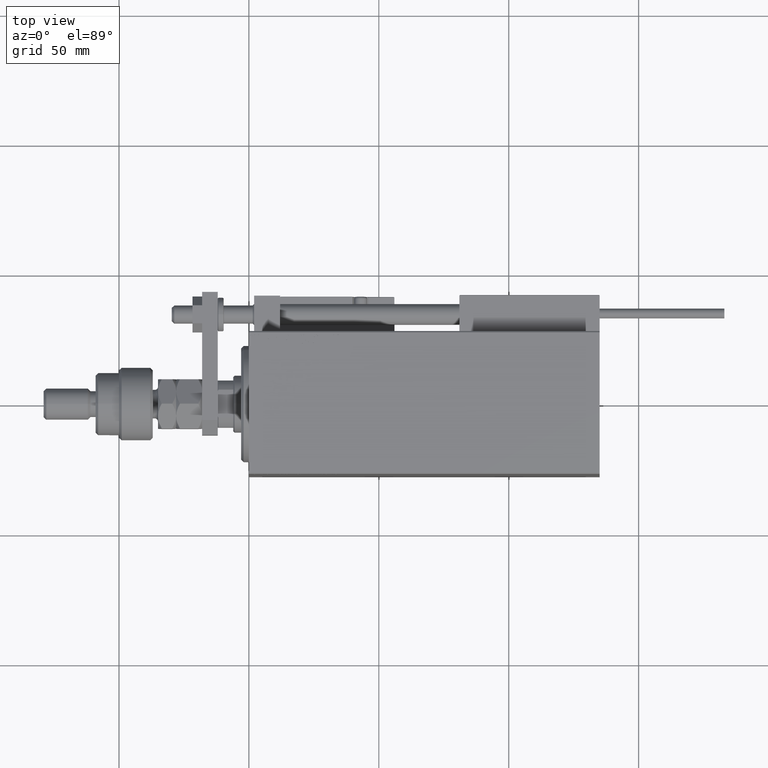
[diagram: clean part render]
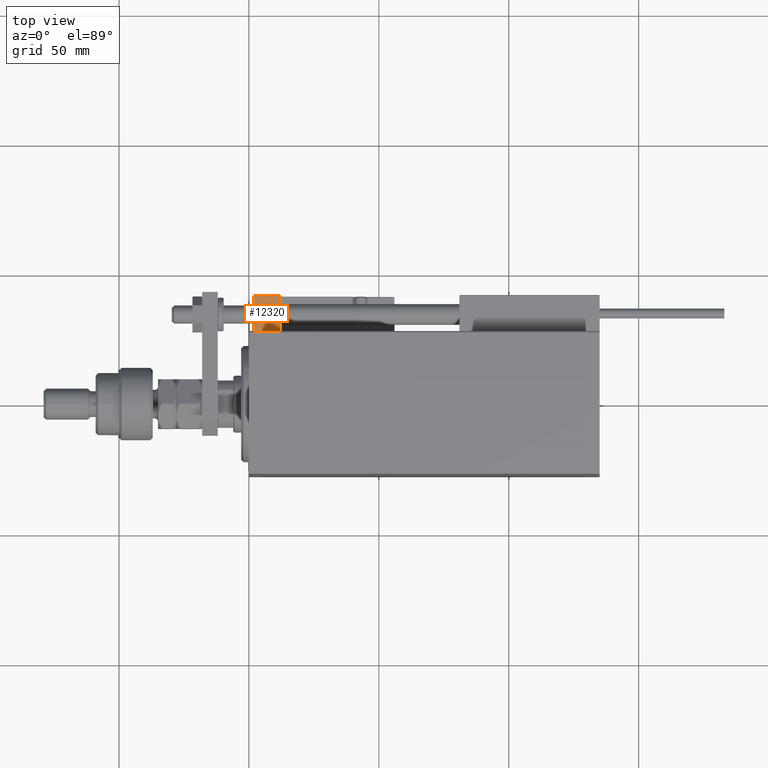
[diagram: same view with one face highlighted and labeled with its STEP entity id]
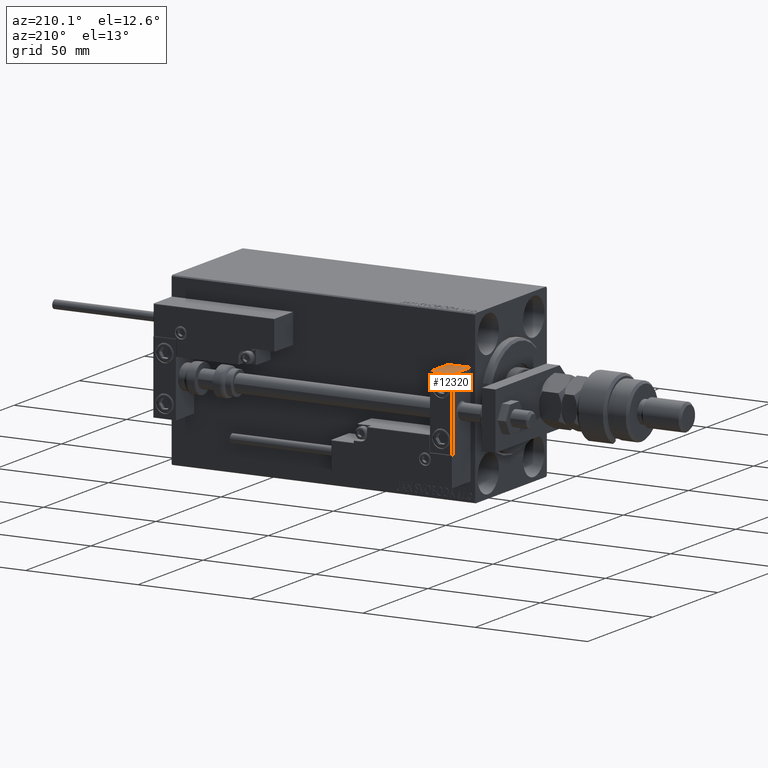
[diagram: same view with one face highlighted and labeled with its STEP entity id]
A machine part, top view. The second image highlights one B-rep face of the part: STEP entity #12320.
A second angle (auxiliary view) of the same face is appended — the face is thin or edge-on in the first view.
In plain terms, the highlighted planar face has unit normal (0, 0, 1).
Its self-contained STEP definition (entity closure, byte-faithful):
#3472 = CARTESIAN_POINT ( 'NONE',  ( 10.00000000000000000, 7.000000000000000000, -16.00000000000000711 ) ) ;
#3737 = DIRECTION ( 'NONE',  ( 0.000000000000000000, 0.000000000000000000, -1.000000000000000000 ) ) ;
#4720 = CARTESIAN_POINT ( 'NONE',  ( 10.00000000000000000, -7.000000000000000000, -16.00000000000000711 ) ) ;
#5248 = FACE_OUTER_BOUND ( 'NONE', #11695, .T. ) ;
#6681 = CARTESIAN_POINT ( 'NONE',  ( 10.00000000000000000, -7.000000000000000000, -16.00000000000000711 ) ) ;
#7991 = CARTESIAN_POINT ( 'NONE',  ( 10.00000000000000000, 7.000000000000000000, -16.00000000000000711 ) ) ;
#11695 = EDGE_LOOP ( 'NONE', ( #49894, #52844, #18844, #33916 ) ) ;
#11929 = VECTOR ( 'NONE', #32487, 1000.000000000000000 ) ;
#12320 = ADVANCED_FACE ( 'NONE', ( #5248 ), #19843, .T. ) ;
#12966 = EDGE_CURVE ( 'NONE', #20006, #34945, #13729, .T. ) ;
#13729 = LINE ( 'NONE', #30104, #16442 ) ;
#14768 = AXIS2_PLACEMENT_3D ( 'NONE', #3472, #3737, #29155 ) ;
#16442 = VECTOR ( 'NONE', #26067, 1000.000000000000000 ) ;
#17990 = VECTOR ( 'NONE', #33472, 1000.000000000000000 ) ;
#18844 = ORIENTED_EDGE ( 'NONE', *, *, #32539, .T. ) ;
#19843 = PLANE ( 'NONE',  #14768 ) ;
#20006 = VERTEX_POINT ( 'NONE', #31364 ) ;
#20336 = EDGE_CURVE ( 'NONE', #45579, #20006, #32879, .T. ) ;
#25320 = CARTESIAN_POINT ( 'NONE',  ( 10.00000000000000000, 7.000000000000000000, -16.00000000000000711 ) ) ;
#26067 = DIRECTION ( 'NONE',  ( 0.000000000000000000, -1.000000000000000000, 0.000000000000000000 ) ) ;
#28593 = VECTOR ( 'NONE', #50063, 1000.000000000000000 ) ;
#28708 = CARTESIAN_POINT ( 'NONE',  ( 10.00000000000000000, 7.000000000000000000, -16.00000000000000711 ) ) ;
#29155 = DIRECTION ( 'NONE',  ( -1.000000000000000000, 0.000000000000000000, -0.000000000000000000 ) ) ;
#30104 = CARTESIAN_POINT ( 'NONE',  ( 0.000000000000000000, 7.000000000000000000, -16.00000000000000711 ) ) ;
#31364 = CARTESIAN_POINT ( 'NONE',  ( 0.000000000000000000, 7.000000000000000000, -16.00000000000000711 ) ) ;
#32487 = DIRECTION ( 'NONE',  ( 0.000000000000000000, -1.000000000000000000, 0.000000000000000000 ) ) ;
#32539 = EDGE_CURVE ( 'NONE', #45579, #34348, #40815, .T. ) ;
#32879 = LINE ( 'NONE', #25320, #28593 ) ;
#33472 = DIRECTION ( 'NONE',  ( -1.000000000000000000, -0.000000000000000000, -0.000000000000000000 ) ) ;
#33916 = ORIENTED_EDGE ( 'NONE', *, *, #37813, .T. ) ;
#34348 = VERTEX_POINT ( 'NONE', #6681 ) ;
#34945 = VERTEX_POINT ( 'NONE', #38263 ) ;
#37813 = EDGE_CURVE ( 'NONE', #34348, #34945, #45576, .T. ) ;
#38263 = CARTESIAN_POINT ( 'NONE',  ( 0.000000000000000000, -7.000000000000000000, -16.00000000000000711 ) ) ;
#40815 = LINE ( 'NONE', #28708, #11929 ) ;
#45576 = LINE ( 'NONE', #4720, #17990 ) ;
#45579 = VERTEX_POINT ( 'NONE', #7991 ) ;
#49894 = ORIENTED_EDGE ( 'NONE', *, *, #12966, .F. ) ;
#50063 = DIRECTION ( 'NONE',  ( -1.000000000000000000, -0.000000000000000000, -0.000000000000000000 ) ) ;
#52844 = ORIENTED_EDGE ( 'NONE', *, *, #20336, .F. ) ;